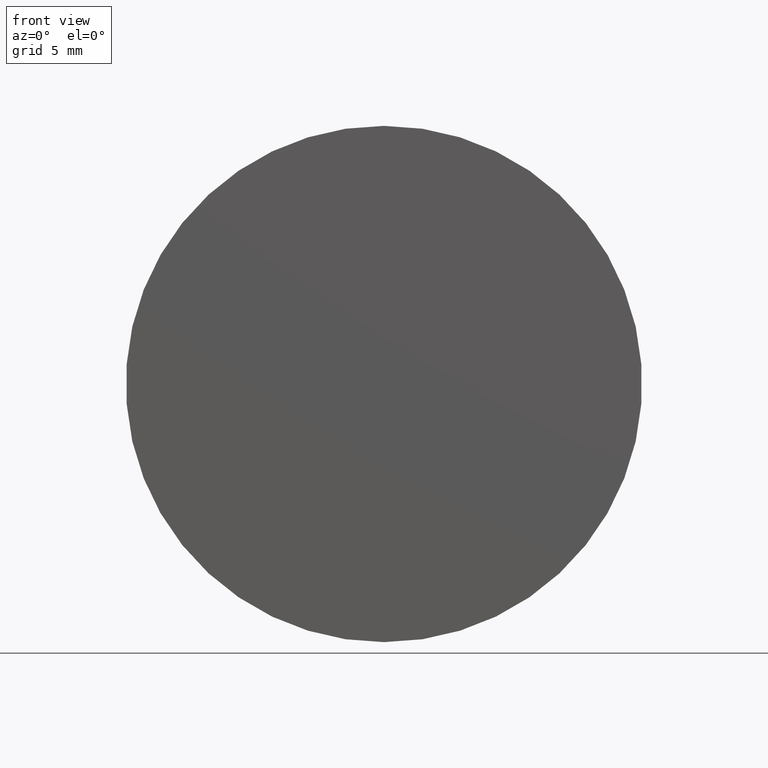
[diagram: clean part render]
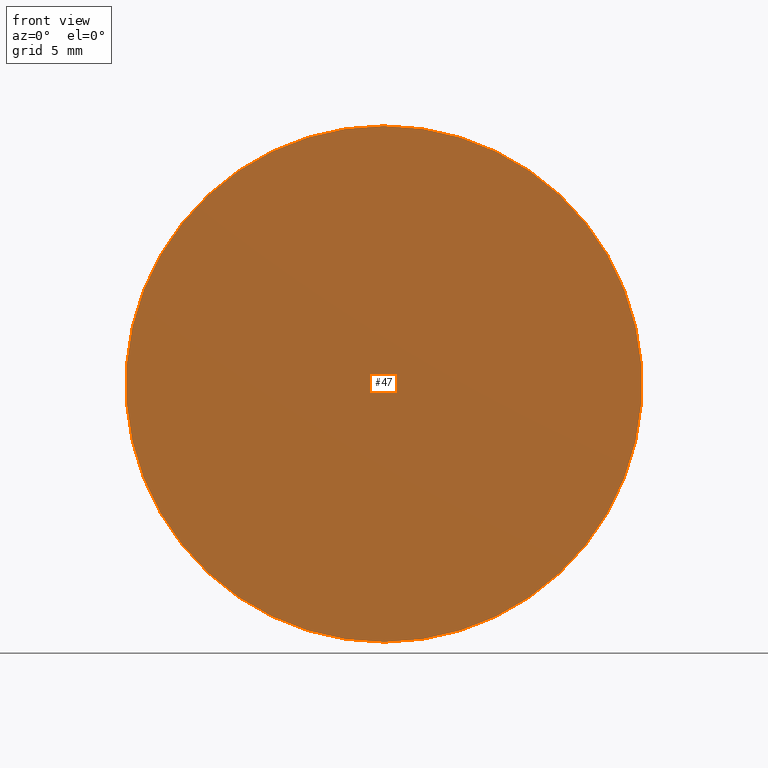
[diagram: same view with one face highlighted and labeled with its STEP entity id]
A machine part, front view. The second image highlights one B-rep face of the part: STEP entity #47.
In plain terms, the highlighted planar face has unit normal (0, -1, 0).
Its self-contained STEP definition (entity closure, byte-faithful):
#25 = DIRECTION ( 'NONE',  ( 0.000000000000000000, -1.000000000000000000, 0.000000000000000000 ) ) ;
#27 = DIRECTION ( 'NONE',  ( 0.000000000000000000, 0.000000000000000000, 1.000000000000000000 ) ) ;
#39 = DIRECTION ( 'NONE',  ( 0.000000000000000000, 0.000000000000000000, 1.000000000000000000 ) ) ;
#47 = ADVANCED_FACE ( 'NONE', ( #174 ), #72, .T. ) ;
#56 = EDGE_LOOP ( 'NONE', ( #119, #131 ) ) ;
#59 = DIRECTION ( 'NONE',  ( 0.000000000000000000, -0.000000000000000000, -1.000000000000000000 ) ) ;
#60 = CARTESIAN_POINT ( 'NONE',  ( 0.000000000000000000, -1.734723475976807094E-15, 15.00000000000000000 ) ) ;
#61 = CARTESIAN_POINT ( 'NONE',  ( 1.836970198721029589E-15, -1.734723475976807094E-15, -15.00000000000000000 ) ) ;
#65 = EDGE_CURVE ( 'NONE', #191, #124, #193, .T. ) ;
#72 = PLANE ( 'NONE',  #151 ) ;
#91 = EDGE_CURVE ( 'NONE', #124, #191, #188, .T. ) ;
#119 = ORIENTED_EDGE ( 'NONE', *, *, #65, .F. ) ;
#124 = VERTEX_POINT ( 'NONE', #61 ) ;
#131 = ORIENTED_EDGE ( 'NONE', *, *, #91, .F. ) ;
#139 = CARTESIAN_POINT ( 'NONE',  ( 0.000000000000000000, -1.734723475976807094E-15, 0.000000000000000000 ) ) ;
#151 = AXIS2_PLACEMENT_3D ( 'NONE', #171, #25, #59 ) ;
#171 = CARTESIAN_POINT ( 'NONE',  ( 0.000000000000000000, -9.184850993605147944E-16, 0.000000000000000000 ) ) ;
#174 = FACE_OUTER_BOUND ( 'NONE', #56, .T. ) ;
#182 = AXIS2_PLACEMENT_3D ( 'NONE', #139, #185, #27 ) ;
#184 = DIRECTION ( 'NONE',  ( -0.000000000000000000, 1.000000000000000000, -0.000000000000000000 ) ) ;
#185 = DIRECTION ( 'NONE',  ( -0.000000000000000000, 1.000000000000000000, -0.000000000000000000 ) ) ;
#188 = CIRCLE ( 'NONE', #182, 15.00000000000000000 ) ;
#190 = AXIS2_PLACEMENT_3D ( 'NONE', #195, #184, #39 ) ;
#191 = VERTEX_POINT ( 'NONE', #60 ) ;
#193 = CIRCLE ( 'NONE', #190, 15.00000000000000000 ) ;
#195 = CARTESIAN_POINT ( 'NONE',  ( 0.000000000000000000, -1.734723475976807094E-15, 0.000000000000000000 ) ) ;